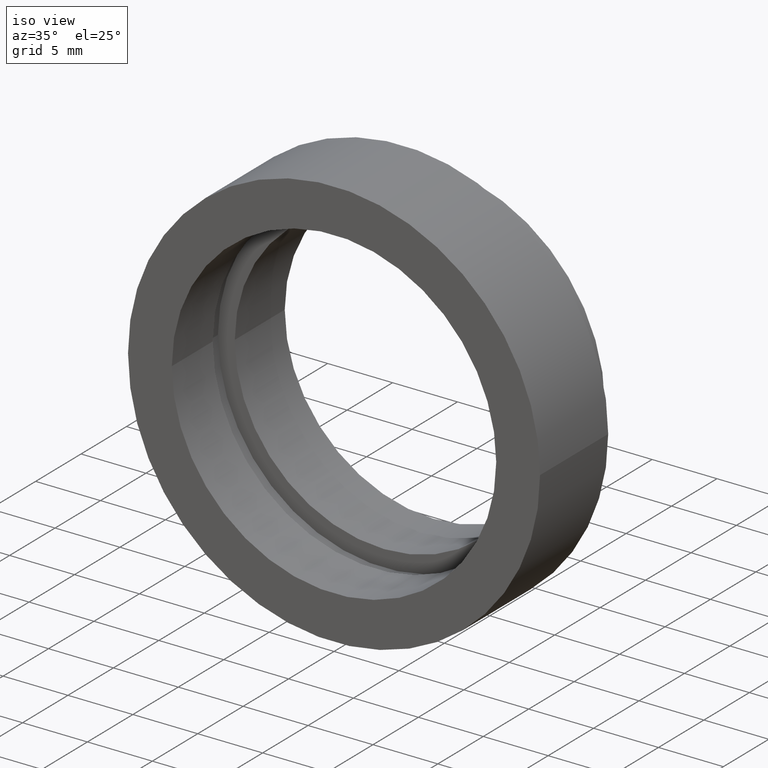
[diagram: clean part render]
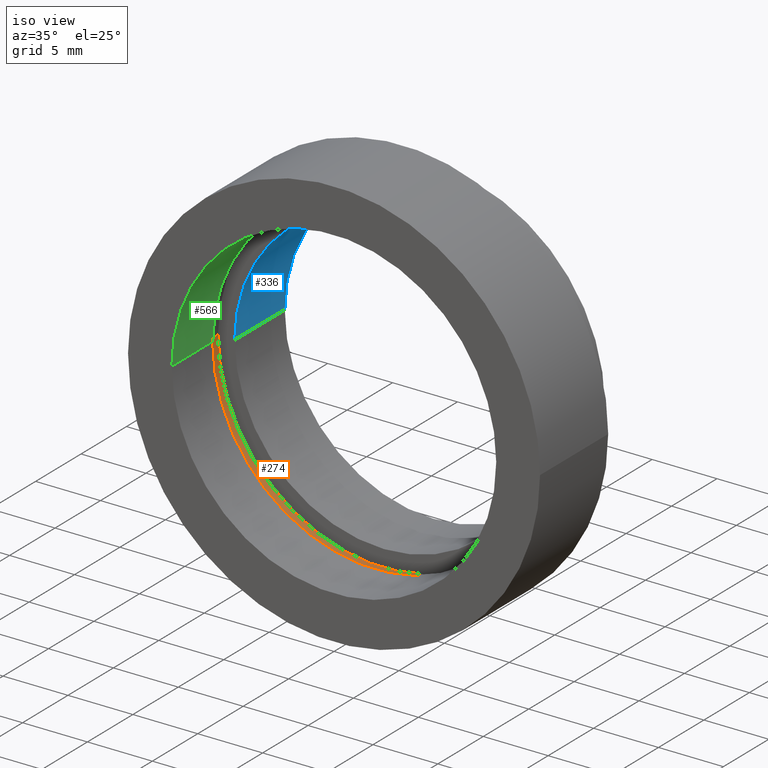
[diagram: same view with three faces highlighted in distinct colors, each labeled with its STEP entity id]
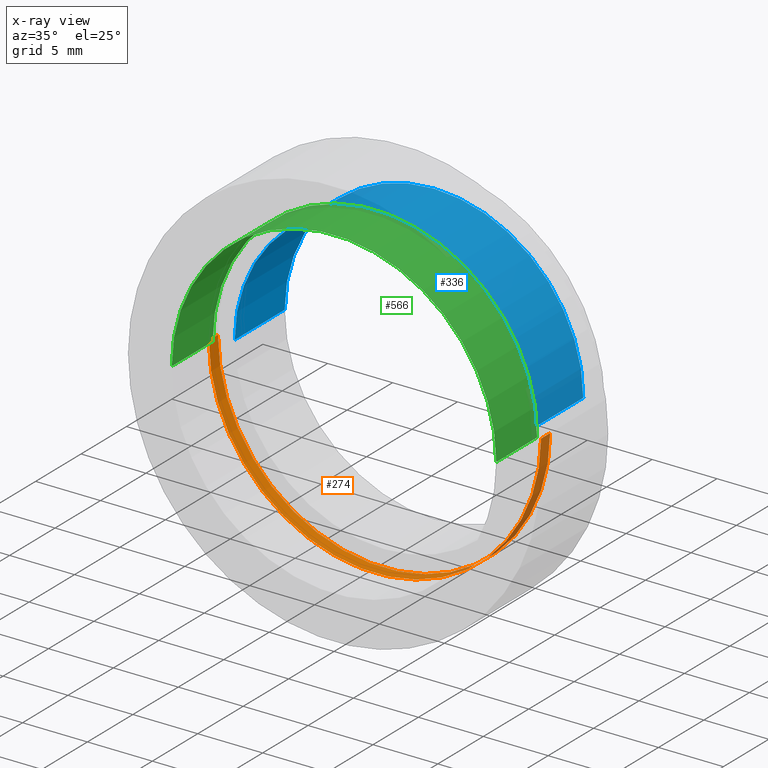
[diagram: x-ray of the same camera — body ghosted, the three highlighted faces saturated]
A machine part, iso view with three faces highlighted in distinct colors.
The next image is the same camera in x-ray (body ghosted, the three faces saturated) — at least one of them is partly hidden behind the body in this view.
Their STEP definitions:

[orange] entity #274 — the highlighted cylindrical surface (partial cylindrical patch) has radius 12.8 mm, axis along (-0, 1, -0).
#3 = EDGE_CURVE ( 'NONE', #23, #424, #531, .T. ) ;
#23 = VERTEX_POINT ( 'NONE', #60 ) ;
#44 = DIRECTION ( 'NONE',  ( -1.000000000000000000, -1.355252715606880500E-016, 0.0000000000000000000 ) ) ;
#47 = CARTESIAN_POINT ( 'NONE',  ( 1.516849758822328100E-015, 4.499999999999999100, 0.0000000000000000000 ) ) ;
#52 = CIRCLE ( 'NONE', #324, 12.80000000000000100 ) ;
#60 = CARTESIAN_POINT ( 'NONE',  ( 12.80000000000000200, 4.500000000000000900, 1.567547902908612200E-015 ) ) ;
#115 = CARTESIAN_POINT ( 'NONE',  ( 12.80000000000000100, 16.88601823708207700, 1.567547902908612200E-015 ) ) ;
#120 = CARTESIAN_POINT ( 'NONE',  ( -12.79999999999999900, 4.499999999999997300, 0.0000000000000000000 ) ) ;
#121 = CIRCLE ( 'NONE', #401, 12.80000000000000100 ) ;
#150 = CYLINDRICAL_SURFACE ( 'NONE', #532, 12.80000000000000100 ) ;
#176 = DIRECTION ( 'NONE',  ( -1.224646799147351000E-016, 1.000000000000000000, -0.0000000000000000000 ) ) ;
#205 = ORIENTED_EDGE ( 'NONE', *, *, #3, .T. ) ;
#207 = VECTOR ( 'NONE', #392, 1000.000000000000000 ) ;
#216 = CARTESIAN_POINT ( 'NONE',  ( 1.394385078907593000E-015, 5.499999999999998200, 0.0000000000000000000 ) ) ;
#250 = EDGE_CURVE ( 'NONE', #424, #508, #52, .T. ) ;
#254 = VERTEX_POINT ( 'NONE', #120 ) ;
#274 = ADVANCED_FACE ( 'NONE', ( #540 ), #150, .F. ) ;
#281 = CARTESIAN_POINT ( 'NONE',  ( 12.80000000000000200, 5.500000000000000000, 1.567547902908612200E-015 ) ) ;
#316 = DIRECTION ( 'NONE',  ( -1.000000000000000000, -1.355252715606880500E-016, 0.0000000000000000000 ) ) ;
#324 = AXIS2_PLACEMENT_3D ( 'NONE', #216, #551, #316 ) ;
#327 = EDGE_LOOP ( 'NONE', ( #426, #205, #485, #492 ) ) ;
#344 = VECTOR ( 'NONE', #525, 1000.000000000000000 ) ;
#392 = DIRECTION ( 'NONE',  ( -1.224646799147351000E-016, 1.000000000000000000, -0.0000000000000000000 ) ) ;
#401 = AXIS2_PLACEMENT_3D ( 'NONE', #47, #476, #44 ) ;
#424 = VERTEX_POINT ( 'NONE', #281 ) ;
#426 = ORIENTED_EDGE ( 'NONE', *, *, #510, .F. ) ;
#430 = CARTESIAN_POINT ( 'NONE',  ( -12.80000000000000100, 16.88601823708207700, 0.0000000000000000000 ) ) ;
#476 = DIRECTION ( 'NONE',  ( -1.224646799147351000E-016, 1.000000000000000000, -0.0000000000000000000 ) ) ;
#485 = ORIENTED_EDGE ( 'NONE', *, *, #250, .T. ) ;
#492 = ORIENTED_EDGE ( 'NONE', *, *, #521, .F. ) ;
#500 = DIRECTION ( 'NONE',  ( -1.000000000000000000, 0.0000000000000000000, 0.0000000000000000000 ) ) ;
#505 = CARTESIAN_POINT ( 'NONE',  ( 0.0000000000000000000, 16.88601823708207700, 0.0000000000000000000 ) ) ;
#508 = VERTEX_POINT ( 'NONE', #527 ) ;
#510 = EDGE_CURVE ( 'NONE', #23, #254, #121, .T. ) ;
#521 = EDGE_CURVE ( 'NONE', #254, #508, #613, .T. ) ;
#525 = DIRECTION ( 'NONE',  ( -1.224646799147351000E-016, 1.000000000000000000, -0.0000000000000000000 ) ) ;
#527 = CARTESIAN_POINT ( 'NONE',  ( -12.79999999999999900, 5.499999999999996400, 0.0000000000000000000 ) ) ;
#531 = LINE ( 'NONE', #115, #207 ) ;
#532 = AXIS2_PLACEMENT_3D ( 'NONE', #505, #176, #500 ) ;
#540 = FACE_OUTER_BOUND ( 'NONE', #327, .T. ) ;
#551 = DIRECTION ( 'NONE',  ( -1.224646799147351000E-016, 1.000000000000000000, -0.0000000000000000000 ) ) ;
#613 = LINE ( 'NONE', #430, #344 ) ;

[blue] entity #336 — the highlighted cylindrical surface (partial cylindrical patch) has radius 11.5 mm, axis along (-0, 1, -0).
#17 = DIRECTION ( 'NONE',  ( -1.224646799147351000E-016, 1.000000000000000000, -0.0000000000000000000 ) ) ;
#24 = CARTESIAN_POINT ( 'NONE',  ( 11.50000000000000200, 5.500000000000000000, 1.408343819019456600E-015 ) ) ;
#41 = FACE_OUTER_BOUND ( 'NONE', #478, .T. ) ;
#84 = EDGE_CURVE ( 'NONE', #104, #142, #481, .T. ) ;
#98 = CYLINDRICAL_SURFACE ( 'NONE', #448, 11.50000000000000000 ) ;
#104 = VERTEX_POINT ( 'NONE', #24 ) ;
#142 = VERTEX_POINT ( 'NONE', #318 ) ;
#163 = VECTOR ( 'NONE', #206, 1000.000000000000000 ) ;
#168 = DIRECTION ( 'NONE',  ( -1.000000000000000000, -1.508455196501571200E-016, 0.0000000000000000000 ) ) ;
#172 = AXIS2_PLACEMENT_3D ( 'NONE', #223, #458, #268 ) ;
#179 = EDGE_CURVE ( 'NONE', #340, #104, #303, .T. ) ;
#206 = DIRECTION ( 'NONE',  ( -1.224646799147351000E-016, 1.000000000000000000, -0.0000000000000000000 ) ) ;
#220 = DIRECTION ( 'NONE',  ( -1.224646799147351000E-016, 1.000000000000000000, -0.0000000000000000000 ) ) ;
#221 = VECTOR ( 'NONE', #460, 1000.000000000000000 ) ;
#222 = EDGE_CURVE ( 'NONE', #340, #588, #444, .T. ) ;
#223 = CARTESIAN_POINT ( 'NONE',  ( 1.394385078907593000E-015, 5.499999999999998200, 0.0000000000000000000 ) ) ;
#228 = CARTESIAN_POINT ( 'NONE',  ( -11.49999999999999800, 5.499999999999996400, 0.0000000000000000000 ) ) ;
#256 = CIRCLE ( 'NONE', #480, 11.50000000000000200 ) ;
#268 = DIRECTION ( 'NONE',  ( -1.000000000000000000, -1.508455196501571400E-016, 0.0000000000000000000 ) ) ;
#282 = ORIENTED_EDGE ( 'NONE', *, *, #222, .T. ) ;
#298 = ORIENTED_EDGE ( 'NONE', *, *, #179, .F. ) ;
#303 = CIRCLE ( 'NONE', #172, 11.50000000000000000 ) ;
#318 = CARTESIAN_POINT ( 'NONE',  ( 11.50000000000000200, 10.99999999999999800, 1.408343819019456600E-015 ) ) ;
#321 = EDGE_CURVE ( 'NONE', #588, #142, #256, .T. ) ;
#336 = ADVANCED_FACE ( 'NONE', ( #41 ), #98, .F. ) ;
#340 = VERTEX_POINT ( 'NONE', #228 ) ;
#354 = DIRECTION ( 'NONE',  ( -1.000000000000000000, 0.0000000000000000000, 0.0000000000000000000 ) ) ;
#444 = LINE ( 'NONE', #507, #221 ) ;
#448 = AXIS2_PLACEMENT_3D ( 'NONE', #549, #17, #354 ) ;
#458 = DIRECTION ( 'NONE',  ( -1.224646799147351000E-016, 1.000000000000000000, -0.0000000000000000000 ) ) ;
#460 = DIRECTION ( 'NONE',  ( -1.224646799147351000E-016, 1.000000000000000000, -0.0000000000000000000 ) ) ;
#472 = CARTESIAN_POINT ( 'NONE',  ( -11.50000000000000200, 10.99999999999999500, 0.0000000000000000000 ) ) ;
#474 = ORIENTED_EDGE ( 'NONE', *, *, #321, .T. ) ;
#478 = EDGE_LOOP ( 'NONE', ( #587, #298, #282, #474 ) ) ;
#480 = AXIS2_PLACEMENT_3D ( 'NONE', #545, #220, #168 ) ;
#481 = LINE ( 'NONE', #595, #163 ) ;
#507 = CARTESIAN_POINT ( 'NONE',  ( -11.50000000000000000, 16.88601823708207700, 0.0000000000000000000 ) ) ;
#545 = CARTESIAN_POINT ( 'NONE',  ( 7.208293393765502500E-016, 10.99999999999999600, 0.0000000000000000000 ) ) ;
#549 = CARTESIAN_POINT ( 'NONE',  ( 0.0000000000000000000, 16.88601823708207700, 0.0000000000000000000 ) ) ;
#587 = ORIENTED_EDGE ( 'NONE', *, *, #84, .F. ) ;
#588 = VERTEX_POINT ( 'NONE', #472 ) ;
#595 = CARTESIAN_POINT ( 'NONE',  ( 11.50000000000000000, 16.88601823708207700, 1.408343819019456200E-015 ) ) ;

[green] entity #566 — the highlighted cylindrical surface (partial cylindrical patch) has radius 12.5 mm, axis along (-0, 1, -0).
#13 = EDGE_LOOP ( 'NONE', ( #523, #241, #400, #397 ) ) ;
#30 = CARTESIAN_POINT ( 'NONE',  ( 1.516849758822328100E-015, 4.499999999999999100, 0.0000000000000000000 ) ) ;
#32 = EDGE_CURVE ( 'NONE', #53, #204, #568, .T. ) ;
#53 = VERTEX_POINT ( 'NONE', #396 ) ;
#56 = VECTOR ( 'NONE', #183, 1000.000000000000000 ) ;
#99 = DIRECTION ( 'NONE',  ( -1.224646799147351000E-016, 1.000000000000000000, -0.0000000000000000000 ) ) ;
#146 = CARTESIAN_POINT ( 'NONE',  ( -12.49999999999999800, 4.499999999999997300, 0.0000000000000000000 ) ) ;
#151 = CARTESIAN_POINT ( 'NONE',  ( -12.49999999999999800, -1.530808498934189000E-015, 0.0000000000000000000 ) ) ;
#153 = EDGE_CURVE ( 'NONE', #526, #204, #245, .T. ) ;
#178 = CARTESIAN_POINT ( 'NONE',  ( 12.50000000000000200, 4.500000000000000900, 1.530808498934191500E-015 ) ) ;
#180 = DIRECTION ( 'NONE',  ( -1.000000000000000000, -1.387778780781445700E-016, 0.0000000000000000000 ) ) ;
#181 = DIRECTION ( 'NONE',  ( -1.000000000000000000, -1.224646799147351200E-016, 0.0000000000000000000 ) ) ;
#183 = DIRECTION ( 'NONE',  ( -1.224646799147351000E-016, 1.000000000000000000, -0.0000000000000000000 ) ) ;
#193 = CIRCLE ( 'NONE', #288, 12.50000000000000000 ) ;
#204 = VERTEX_POINT ( 'NONE', #178 ) ;
#215 = LINE ( 'NONE', #271, #56 ) ;
#241 = ORIENTED_EDGE ( 'NONE', *, *, #253, .F. ) ;
#245 = CIRCLE ( 'NONE', #469, 12.50000000000000000 ) ;
#253 = EDGE_CURVE ( 'NONE', #573, #53, #193, .T. ) ;
#271 = CARTESIAN_POINT ( 'NONE',  ( -12.50000000000000000, 16.88601823708207700, 0.0000000000000000000 ) ) ;
#288 = AXIS2_PLACEMENT_3D ( 'NONE', #404, #552, #181 ) ;
#301 = VECTOR ( 'NONE', #488, 1000.000000000000000 ) ;
#337 = EDGE_CURVE ( 'NONE', #573, #526, #215, .T. ) ;
#342 = CYLINDRICAL_SURFACE ( 'NONE', #591, 12.50000000000000000 ) ;
#374 = FACE_OUTER_BOUND ( 'NONE', #13, .T. ) ;
#396 = CARTESIAN_POINT ( 'NONE',  ( 12.50000000000000200, 1.530808498934189000E-015, 1.530808498934191500E-015 ) ) ;
#397 = ORIENTED_EDGE ( 'NONE', *, *, #153, .T. ) ;
#400 = ORIENTED_EDGE ( 'NONE', *, *, #337, .T. ) ;
#404 = CARTESIAN_POINT ( 'NONE',  ( 2.067940818438636100E-015, 0.0000000000000000000, 0.0000000000000000000 ) ) ;
#446 = CARTESIAN_POINT ( 'NONE',  ( 12.50000000000000000, 16.88601823708207700, 1.530808498934191500E-015 ) ) ;
#469 = AXIS2_PLACEMENT_3D ( 'NONE', #30, #499, #180 ) ;
#479 = DIRECTION ( 'NONE',  ( -1.000000000000000000, 0.0000000000000000000, 0.0000000000000000000 ) ) ;
#488 = DIRECTION ( 'NONE',  ( -1.224646799147351000E-016, 1.000000000000000000, -0.0000000000000000000 ) ) ;
#499 = DIRECTION ( 'NONE',  ( -1.224646799147351000E-016, 1.000000000000000000, -0.0000000000000000000 ) ) ;
#523 = ORIENTED_EDGE ( 'NONE', *, *, #32, .F. ) ;
#526 = VERTEX_POINT ( 'NONE', #146 ) ;
#552 = DIRECTION ( 'NONE',  ( -1.224646799147351000E-016, 1.000000000000000000, -0.0000000000000000000 ) ) ;
#566 = ADVANCED_FACE ( 'NONE', ( #374 ), #342, .F. ) ;
#568 = LINE ( 'NONE', #446, #301 ) ;
#573 = VERTEX_POINT ( 'NONE', #151 ) ;
#576 = CARTESIAN_POINT ( 'NONE',  ( 0.0000000000000000000, 16.88601823708207700, 0.0000000000000000000 ) ) ;
#591 = AXIS2_PLACEMENT_3D ( 'NONE', #576, #99, #479 ) ;